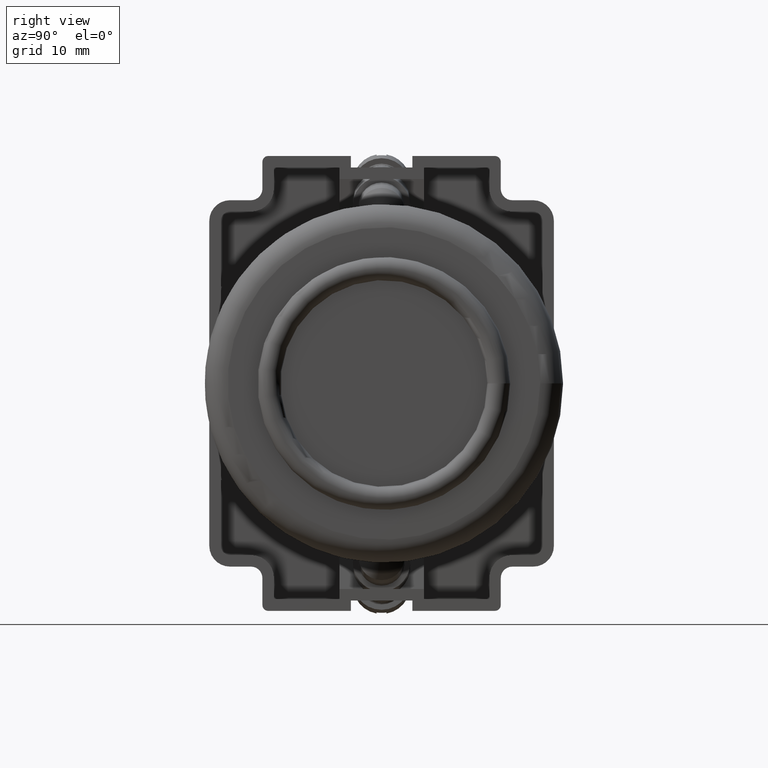
[diagram: clean part render]
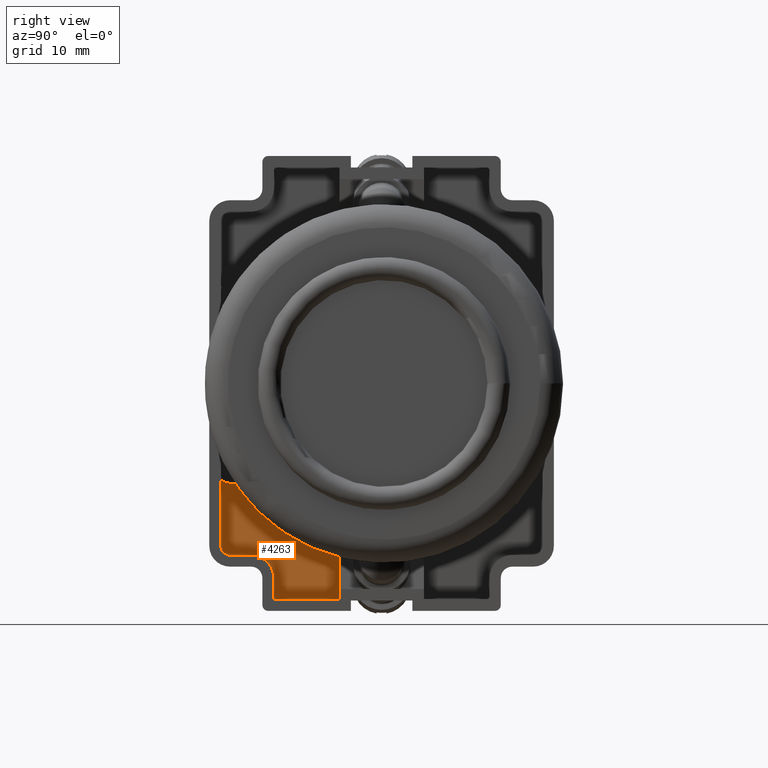
[diagram: same view with one face highlighted and labeled with its STEP entity id]
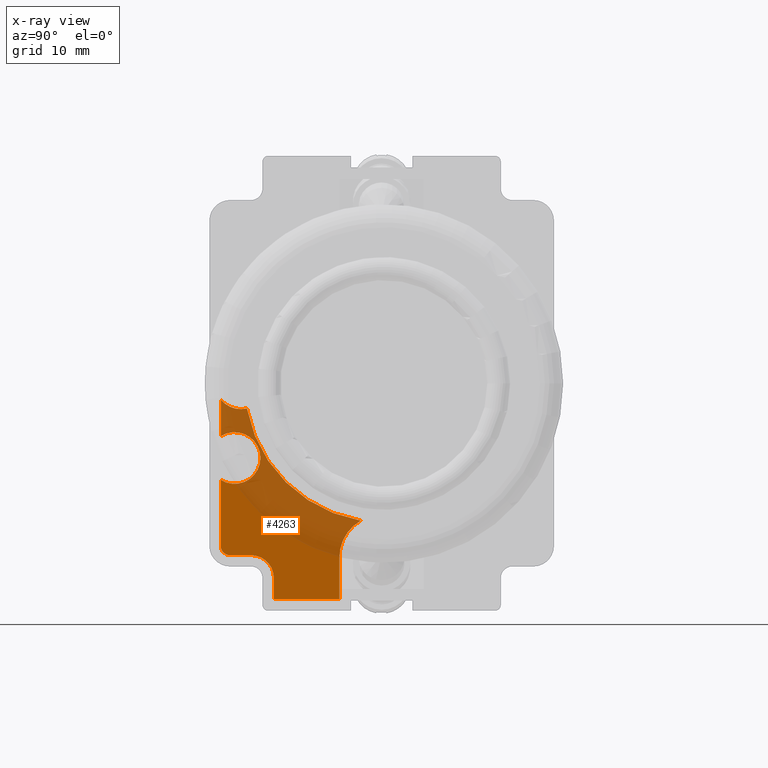
[diagram: x-ray of the same camera — body ghosted, the highlighted face saturated]
A machine part, right view. The second image highlights one B-rep face of the part: STEP entity #4263.
The next image is the same camera in x-ray: the body ghosted, the highlighted face saturated — about 45% of this face is hidden behind the body in this view.
In plain terms, the highlighted planar face has unit normal (-1, 0, 0).
Its self-contained STEP definition (entity closure, byte-faithful):
#3648=CARTESIAN_POINT('',(-11.138735953483650,8.325254952629109,9.750000000000000));
#3649=VERTEX_POINT('',#3648);
#3656=CARTESIAN_POINT('',(-14.332780308276106,6.467864828157554,9.750000000000000));
#3657=VERTEX_POINT('',#3656);
#3658=CARTESIAN_POINT('',(-14.332780308276106,10.142864828157554,9.750000000000000));
#3659=DIRECTION('',(0.0,0.0,1.0));
#3660=DIRECTION('',(0.0,-1.0,0.0));
#3661=AXIS2_PLACEMENT_3D('',#3658,#3659,#3660);
#3662=CIRCLE('',#3661,3.675000000000014);
#3663=EDGE_CURVE('',#3649,#3657,#3662,.F.);
#3763=CARTESIAN_POINT('',(-1.370895773257584,-1.583063886701886,9.750000000000000));
#3764=VERTEX_POINT('',#3763);
#3771=CARTESIAN_POINT('',(0.817219691723891,10.342864828157554,9.750000000000000));
#3772=DIRECTION('',(0.0,0.0,-1.000000000000000));
#3773=DIRECTION('',(-0.134831460674157,0.990868546888271,0.0));
#3774=AXIS2_PLACEMENT_3D('',#3771,#3772,#3773);
#3775=CIRCLE('',#3774,12.125000000000000);
#3776=EDGE_CURVE('',#3764,#3649,#3775,.T.);
#3978=CARTESIAN_POINT('',(-7.586066939343538,-3.857135171842445,9.750000000000000));
#3979=VERTEX_POINT('',#3978);
#3986=CARTESIAN_POINT('',(-3.779493677208680,-3.857135171842445,9.750000000000000));
#3987=VERTEX_POINT('',#3986);
#3988=CARTESIAN_POINT('',(-5.682780308276109,-2.657135171842446,9.750000000000000));
#3989=DIRECTION('',(0.0,0.0,-1.0));
#3990=DIRECTION('',(-1.0,0.0,0.0));
#3991=AXIS2_PLACEMENT_3D('',#3988,#3989,#3990);
#3992=CIRCLE('',#3991,2.250000000000000);
#3993=EDGE_CURVE('',#3979,#3987,#3992,.T.);
#4182=CARTESIAN_POINT('',(0.840775314883319,10.142864828157549,9.750000000000000));
#4183=DIRECTION('',(0.0,0.0,1.0));
#4184=DIRECTION('',(1.0,0.0,0.0));
#4185=AXIS2_PLACEMENT_3D('',#4182,#4183,#4184);
#4186=PLANE('',#4185);
#4187=ORIENTED_EDGE('',*,*,#3776,.F.);
#4188=CARTESIAN_POINT('',(-0.596993870649191,-3.857135171842445,9.750000000000000));
#4189=VERTEX_POINT('',#4188);
#4190=CARTESIAN_POINT('',(0.817219691723898,-2.107135171842440,9.750000000000000));
#4191=DIRECTION('',(0.0,0.0,-1.0));
#4192=DIRECTION('',(1.0,0.0,0.0));
#4193=AXIS2_PLACEMENT_3D('',#4190,#4191,#4192);
#4194=CIRCLE('',#4193,2.250000000000000);
#4195=EDGE_CURVE('',#4189,#3764,#4194,.T.);
#4196=ORIENTED_EDGE('',*,*,#4195,.F.);
#4197=CARTESIAN_POINT('',(-3.779493677208680,-3.857135171842445,9.750000000000000));
#4198=DIRECTION('',(1.0,0.0,0.0));
#4199=VECTOR('',#4198,3.182499806559489);
#4200=LINE('',#4197,#4199);
#4201=EDGE_CURVE('',#4189,#3987,#4200,.F.);
#4202=ORIENTED_EDGE('',*,*,#4201,.T.);
#4203=ORIENTED_EDGE('',*,*,#3993,.F.);
#4204=CARTESIAN_POINT('',(-13.332780308276105,-3.857135171842446,9.750000000000000));
#4205=VERTEX_POINT('',#4204);
#4206=CARTESIAN_POINT('',(-13.332780308276105,-3.857135171842446,9.750000000000000));
#4207=DIRECTION('',(1.0,0.0,0.0));
#4208=VECTOR('',#4207,5.746713368932567);
#4209=LINE('',#4206,#4208);
#4210=EDGE_CURVE('',#3979,#4205,#4209,.F.);
#4211=ORIENTED_EDGE('',*,*,#4210,.T.);
#4212=CARTESIAN_POINT('',(-14.132780308276104,-3.057135171842444,9.750000000000000));
#4213=VERTEX_POINT('',#4212);
#4214=CARTESIAN_POINT('',(-13.332780308276105,-3.057135171842446,9.750000000000000));
#4215=DIRECTION('',(0.0,0.0,1.0));
#4216=DIRECTION('',(-1.0,0.0,0.0));
#4217=AXIS2_PLACEMENT_3D('',#4214,#4215,#4216);
#4218=CIRCLE('',#4217,0.799999999999997);
#4219=EDGE_CURVE('',#4205,#4213,#4218,.F.);
#4220=ORIENTED_EDGE('',*,*,#4219,.T.);
#4221=CARTESIAN_POINT('',(-14.132780308276105,-1.232135171842446,9.750000000000000));
#4222=VERTEX_POINT('',#4221);
#4223=CARTESIAN_POINT('',(-14.132780308276105,-1.232135171842446,9.750000000000000));
#4224=DIRECTION('',(0.0,-1.0,0.0));
#4225=VECTOR('',#4224,1.824999999999999);
#4226=LINE('',#4223,#4225);
#4227=EDGE_CURVE('',#4213,#4222,#4226,.F.);
#4228=ORIENTED_EDGE('',*,*,#4227,.T.);
#4229=CARTESIAN_POINT('',(-16.132780308276104,0.767864828157553,9.750000000000000));
#4230=VERTEX_POINT('',#4229);
#4231=CARTESIAN_POINT('',(-16.132780308276104,-1.232135171842448,9.750000000000000));
#4232=DIRECTION('',(0.0,0.0,-1.0));
#4233=DIRECTION('',(-1.0,0.0,0.0));
#4234=AXIS2_PLACEMENT_3D('',#4231,#4232,#4233);
#4235=CIRCLE('',#4234,2.000000000000003);
#4236=EDGE_CURVE('',#4222,#4230,#4235,.F.);
#4237=ORIENTED_EDGE('',*,*,#4236,.T.);
#4238=CARTESIAN_POINT('',(-17.982780308276109,0.767864828157553,9.749999999999998));
#4239=VERTEX_POINT('',#4238);
#4240=CARTESIAN_POINT('',(-17.982780308276109,0.767864828157553,9.749999999999998));
#4241=DIRECTION('',(1.0,0.0,0.0));
#4242=VECTOR('',#4241,1.850000000000005);
#4243=LINE('',#4240,#4242);
#4244=EDGE_CURVE('',#4230,#4239,#4243,.F.);
#4245=ORIENTED_EDGE('',*,*,#4244,.T.);
#4246=CARTESIAN_POINT('',(-17.982780308276109,6.467864828157552,9.749999999999998));
#4247=VERTEX_POINT('',#4246);
#4248=CARTESIAN_POINT('',(-17.982780308276109,6.467864828157552,9.749999999999998));
#4249=DIRECTION('',(0.0,-1.0,0.0));
#4250=VECTOR('',#4249,5.699999999999999);
#4251=LINE('',#4248,#4250);
#4252=EDGE_CURVE('',#4239,#4247,#4251,.F.);
#4253=ORIENTED_EDGE('',*,*,#4252,.T.);
#4254=CARTESIAN_POINT('',(-14.332780308276106,6.467864828157554,9.750000000000000));
#4255=DIRECTION('',(-1.0,0.0,0.0));
#4256=VECTOR('',#4255,3.650000000000002);
#4257=LINE('',#4254,#4256);
#4258=EDGE_CURVE('',#3657,#4247,#4257,.T.);
#4259=ORIENTED_EDGE('',*,*,#4258,.F.);
#4260=ORIENTED_EDGE('',*,*,#3663,.F.);
#4261=EDGE_LOOP('',(#4187,#4196,#4202,#4203,#4211,#4220,#4228,#4237,#4245,#4253,#4259,#4260));
#4262=FACE_OUTER_BOUND('',#4261,.T.);
#4263=ADVANCED_FACE('',(#4262),#4186,.F.);